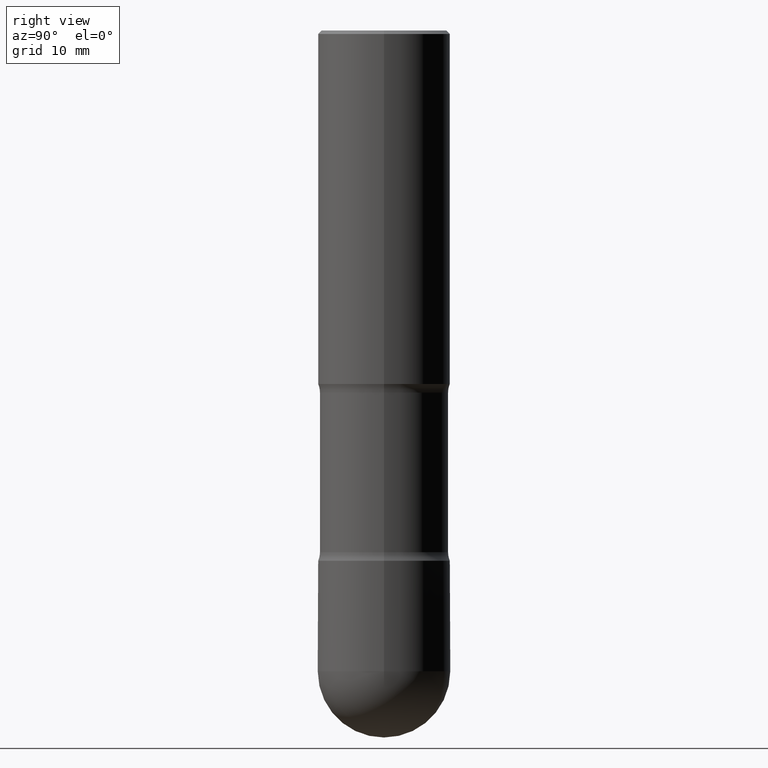
[diagram: clean part render]
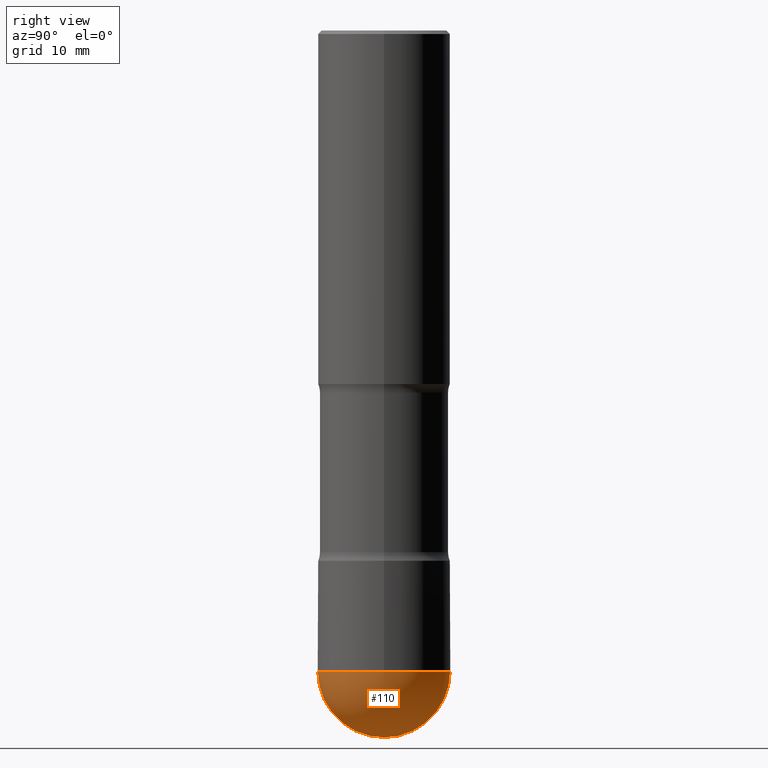
[diagram: same view with one face highlighted and labeled with its STEP entity id]
A machine part, right view. The second image highlights one B-rep face of the part: STEP entity #110.
In plain terms, the highlighted spherical surface has radius 9.525 mm.
Its self-contained STEP definition (entity closure, byte-faithful):
#22 = ORIENTED_EDGE ( 'NONE', *, *, #538, .T. ) ;
#31 = DIRECTION ( 'NONE',  ( 1.000000000000000000, -6.982962677686266711E-15, 4.883557194083113462E-29 ) ) ;
#38 = DIRECTION ( 'NONE',  ( 7.105427357601001070E-15, 1.000000000000000000, 0.000000000000000000 ) ) ;
#54 = CIRCLE ( 'NONE', #274, 0.3750000000000002220 ) ;
#57 = CARTESIAN_POINT ( 'NONE',  ( 8.661722428741013977E-29, -1.294747346810389857E-14, -3.624999999999999556 ) ) ;
#70 = EDGE_CURVE ( 'NONE', #259, #447, #478, .T. ) ;
#81 = ORIENTED_EDGE ( 'NONE', *, *, #161, .F. ) ;
#110 = ADVANCED_FACE ( 'NONE', ( #316 ), #241, .T. ) ;
#111 = DIRECTION ( 'NONE',  ( -2.445468806185136597E-29, 3.491481338843145583E-15, 1.000000000000000000 ) ) ;
#152 = DIRECTION ( 'NONE',  ( 1.000000000000000000, -6.982962677686264344E-15, 0.000000000000000000 ) ) ;
#161 = EDGE_CURVE ( 'NONE', #342, #178, #54, .T. ) ;
#178 = VERTEX_POINT ( 'NONE', #311 ) ;
#187 = DIRECTION ( 'NONE',  ( -6.982962677686266711E-15, -1.000000000000000000, 2.913971193241878794E-15 ) ) ;
#189 = AXIS2_PLACEMENT_3D ( 'NONE', #57, #31, #187 ) ;
#194 = CARTESIAN_POINT ( 'NONE',  ( 0.3749999999999993894, -1.418414293905026633E-14, -3.624999999999999556 ) ) ;
#195 = CARTESIAN_POINT ( 'NONE',  ( 8.661722428741013977E-29, -1.294747346810389857E-14, -3.624999999999999556 ) ) ;
#207 = EDGE_CURVE ( 'NONE', #178, #259, #382, .T. ) ;
#232 = ORIENTED_EDGE ( 'NONE', *, *, #70, .F. ) ;
#241 = SPHERICAL_SURFACE ( 'NONE', #189, 0.3750000000000002220 ) ;
#259 = VERTEX_POINT ( 'NONE', #194 ) ;
#266 = AXIS2_PLACEMENT_3D ( 'NONE', #373, #543, #152 ) ;
#274 = AXIS2_PLACEMENT_3D ( 'NONE', #195, #473, #353 ) ;
#311 = CARTESIAN_POINT ( 'NONE',  ( -2.618611004132261270E-15, -0.3750000000000126565, -3.624999999999998668 ) ) ;
#315 = DIRECTION ( 'NONE',  ( 1.000000000000000000, -6.982962677686264344E-15, 0.000000000000000000 ) ) ;
#316 = FACE_OUTER_BOUND ( 'NONE', #550, .T. ) ;
#333 = ORIENTED_EDGE ( 'NONE', *, *, #207, .F. ) ;
#342 = VERTEX_POINT ( 'NONE', #349 ) ;
#349 = CARTESIAN_POINT ( 'NONE',  ( 9.562738863138327646E-29, -1.427974109765409430E-14, -4.000000000000000000 ) ) ;
#353 = DIRECTION ( 'NONE',  ( -6.982962677686266711E-15, -1.000000000000000000, 0.000000000000000000 ) ) ;
#373 = CARTESIAN_POINT ( 'NONE',  ( 8.864824422421120163E-29, -1.265661985330640259E-14, -3.624999999999999556 ) ) ;
#375 = DIRECTION ( 'NONE',  ( 1.000000000000000000, -7.105427357601001070E-15, 4.926315508542082329E-29 ) ) ;
#382 = CIRCLE ( 'NONE', #422, 0.3749999999999993894 ) ;
#422 = AXIS2_PLACEMENT_3D ( 'NONE', #536, #111, #315 ) ;
#447 = VERTEX_POINT ( 'NONE', #520 ) ;
#453 = CIRCLE ( 'NONE', #489, 0.3750000000000002220 ) ;
#473 = DIRECTION ( 'NONE',  ( -1.000000000000000000, 6.982962677686265922E-15, -4.883557194083112340E-29 ) ) ;
#478 = CIRCLE ( 'NONE', #266, 0.3749999999999993894 ) ;
#489 = AXIS2_PLACEMENT_3D ( 'NONE', #564, #375, #38 ) ;
#520 = CARTESIAN_POINT ( 'NONE',  ( 2.664535259100461683E-15, 0.3749999999999870104, -3.625000000000000888 ) ) ;
#536 = CARTESIAN_POINT ( 'NONE',  ( 8.864824422421120163E-29, -1.265661985330640259E-14, -3.624999999999999556 ) ) ;
#538 = EDGE_CURVE ( 'NONE', #342, #447, #453, .T. ) ;
#543 = DIRECTION ( 'NONE',  ( -2.445468806185136597E-29, 3.491481338843145583E-15, 1.000000000000000000 ) ) ;
#550 = EDGE_LOOP ( 'NONE', ( #81, #22, #232, #333 ) ) ;
#564 = CARTESIAN_POINT ( 'NONE',  ( 8.661722428741013977E-29, -1.294747346810389857E-14, -3.624999999999999556 ) ) ;